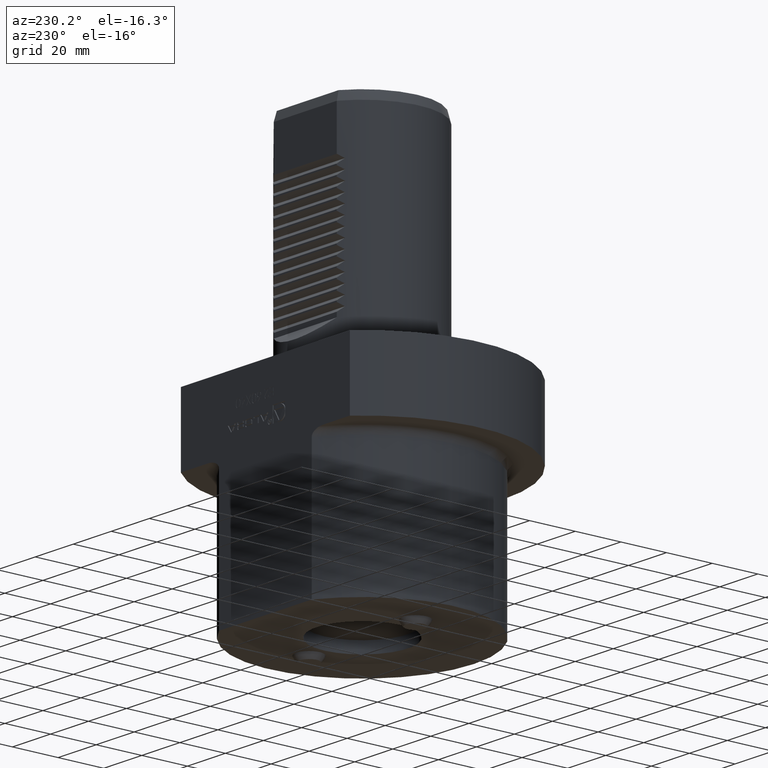
[diagram: clean part render]
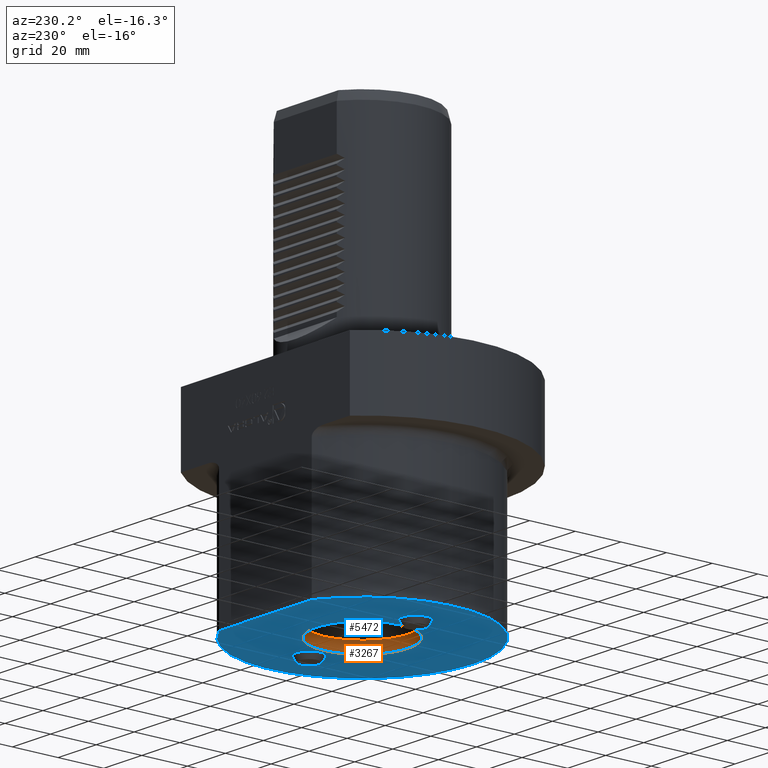
[diagram: same view with the hole feature highlighted: cylindrical wall and planar end face, labeled with their STEP entity ids]
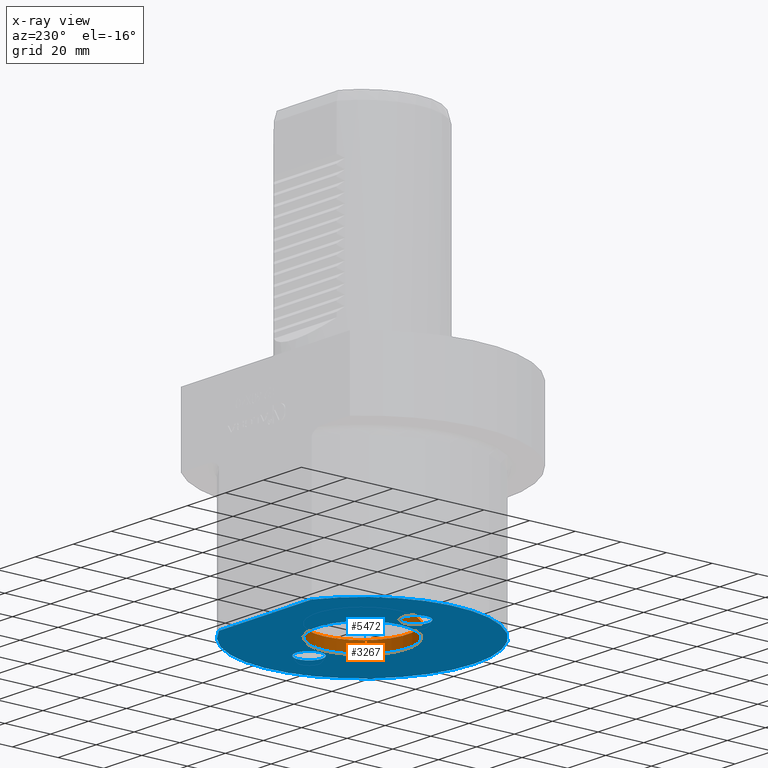
[diagram: x-ray of the same camera — body ghosted, the hole faces saturated]
A machine part, auxiliary view. The highlighted faces form one hole feature of diameter 40 mm: the cylindrical wall (entity #3267, orange) and its adjacent planar end face (entity #5472, blue) — they share a circular edge in the B-rep.
The next image is the same camera in x-ray (body ghosted, the hole faces saturated) — the bore reads through the body.
Wall:
#2585 = CARTESIAN_POINT ( 'NONE',  ( -3.996802888650567332E-14, -1.102182119232614913E-14, -90.00000000000000000 ) ) ;
#3230 = VERTEX_POINT ( 'NONE', #10713 ) ;
#3267 = ADVANCED_FACE ( 'NONE', ( #4487, #13685 ), #7686, .F. ) ;
#3443 = CARTESIAN_POINT ( 'NONE',  ( -3.774758283725535393E-14, -1.040949779275247497E-14, -84.99999999999998579 ) ) ;
#3961 = AXIS2_PLACEMENT_3D ( 'NONE', #3443, #12640, #8752 ) ;
#4397 = AXIS2_PLACEMENT_3D ( 'NONE', #2585, #11126, #10077 ) ;
#4487 = FACE_OUTER_BOUND ( 'NONE', #5791, .T. ) ;
#5791 = EDGE_LOOP ( 'NONE', ( #5984 ) ) ;
#5978 = CIRCLE ( 'NONE', #6666, 20.00000000000000000 ) ;
#5984 = ORIENTED_EDGE ( 'NONE', *, *, #8963, .F. ) ;
#6666 = AXIS2_PLACEMENT_3D ( 'NONE', #10600, #12714, #9566 ) ;
#6820 = EDGE_CURVE ( 'NONE', #3230, #3230, #13779, .T. ) ;
#7686 = CYLINDRICAL_SURFACE ( 'NONE', #3961, 20.00000000000000000 ) ;
#8752 = DIRECTION ( 'NONE',  ( -1.000000000000000000, 0.000000000000000000, 6.938893903907228378E-16 ) ) ;
#8963 = EDGE_CURVE ( 'NONE', #11701, #11701, #5978, .T. ) ;
#9566 = DIRECTION ( 'NONE',  ( -1.000000000000000000, 0.000000000000000000, 6.938893903907228378E-16 ) ) ;
#10077 = DIRECTION ( 'NONE',  ( -1.000000000000000000, 0.000000000000000000, 6.938893903907228378E-16 ) ) ;
#10600 = CARTESIAN_POINT ( 'NONE',  ( -3.774758283725535393E-14, -1.040949779275247497E-14, -84.99999999999998579 ) ) ;
#10647 = CARTESIAN_POINT ( 'NONE',  ( -20.00000000000003908, -1.040949779275247497E-14, -84.99999999999997158 ) ) ;
#10713 = CARTESIAN_POINT ( 'NONE',  ( -20.00000000000004263, -1.102182119232614913E-14, -89.99999999999998579 ) ) ;
#10787 = ORIENTED_EDGE ( 'NONE', *, *, #6820, .T. ) ;
#11126 = DIRECTION ( 'NONE',  ( -4.440892098500630106E-16, -1.224646799147350002E-16, -1.000000000000000000 ) ) ;
#11627 = EDGE_LOOP ( 'NONE', ( #10787 ) ) ;
#11701 = VERTEX_POINT ( 'NONE', #10647 ) ;
#12640 = DIRECTION ( 'NONE',  ( -4.440892098500630106E-16, -1.224646799147350002E-16, -1.000000000000000000 ) ) ;
#12714 = DIRECTION ( 'NONE',  ( -4.440892098500630106E-16, -1.224646799147350002E-16, -1.000000000000000000 ) ) ;
#13685 = FACE_OUTER_BOUND ( 'NONE', #11627, .T. ) ;
#13779 = CIRCLE ( 'NONE', #4397, 20.00000000000000000 ) ;
End face:
#64 = CARTESIAN_POINT ( 'NONE',  ( -33.67123702116954576, 1.494834246462925884E-15, -89.99999999999998579 ) ) ;
#1131 = VERTEX_POINT ( 'NONE', #4136 ) ;
#1260 = DIRECTION ( 'NONE',  ( -1.000000000000000000, 0.000000000000000000, 4.440892098500630106E-16 ) ) ;
#1290 = EDGE_CURVE ( 'NONE', #11625, #11625, #8484, .T. ) ;
#1743 = DIRECTION ( 'NONE',  ( -4.440892098500630106E-16, -1.224646799147350002E-16, -1.000000000000000000 ) ) ;
#2101 = FACE_BOUND ( 'NONE', #6139, .T. ) ;
#2317 = EDGE_LOOP ( 'NONE', ( #13801, #11642 ) ) ;
#2406 = EDGE_LOOP ( 'NONE', ( #9330 ) ) ;
#2585 = CARTESIAN_POINT ( 'NONE',  ( -3.996802888650567332E-14, -1.102182119232614913E-14, -90.00000000000000000 ) ) ;
#3230 = VERTEX_POINT ( 'NONE', #10713 ) ;
#3279 = FACE_OUTER_BOUND ( 'NONE', #2317, .T. ) ;
#3473 = VERTEX_POINT ( 'NONE', #11942 ) ;
#3713 = DIRECTION ( 'NONE',  ( 1.000000000000000000, -1.608122649676639805E-16, -4.440892098500630106E-16 ) ) ;
#3748 = AXIS2_PLACEMENT_3D ( 'NONE', #11354, #4211, #12553 ) ;
#3886 = ORIENTED_EDGE ( 'NONE', *, *, #1290, .T. ) ;
#4136 = CARTESIAN_POINT ( 'NONE',  ( 22.32876297883045069, -5.444059657444302494E-15, -90.00000000000001421 ) ) ;
#4211 = DIRECTION ( 'NONE',  ( 4.440892098500630106E-16, 1.224646799147350002E-16, 1.000000000000000000 ) ) ;
#4397 = AXIS2_PLACEMENT_3D ( 'NONE', #2585, #11126, #10077 ) ;
#4405 = CARTESIAN_POINT ( 'NONE',  ( 24.38749679651440161, 42.50000000000000000, -90.00000000000000000 ) ) ;
#4707 = VECTOR ( 'NONE', #3713, 1000.000000000000000 ) ;
#4762 = DIRECTION ( 'NONE',  ( -4.440892098500630106E-16, -1.224646799147350002E-16, -1.000000000000000000 ) ) ;
#5472 = ADVANCED_FACE ( 'Defeature completata1_53', ( #8595, #11676, #2101, #3279 ), #13853, .T. ) ;
#5585 = AXIS2_PLACEMENT_3D ( 'NONE', #8116, #4762, #12408 ) ;
#6139 = EDGE_LOOP ( 'NONE', ( #3886 ) ) ;
#6465 = CARTESIAN_POINT ( 'NONE',  ( -3.996802888650559759E-14, -1.102182119232619962E-14, -90.00000000000000000 ) ) ;
#6540 = DIRECTION ( 'NONE',  ( -4.440892098500630106E-16, -1.224646799147350002E-16, -1.000000000000000000 ) ) ;
#6820 = EDGE_CURVE ( 'NONE', #3230, #3230, #13779, .T. ) ;
#7503 = CIRCLE ( 'NONE', #9066, 49.00000000000000000 ) ;
#7855 = EDGE_CURVE ( 'NONE', #12321, #3473, #7503, .T. ) ;
#8116 = CARTESIAN_POINT ( 'NONE',  ( 27.99999999999998224, -5.444059657444302494E-15, -90.00000000000001421 ) ) ;
#8484 = CIRCLE ( 'NONE', #3748, 5.671237021169534209 ) ;
#8595 = FACE_BOUND ( 'NONE', #2406, .T. ) ;
#8893 = LINE ( 'NONE', #10020, #4707 ) ;
#9066 = AXIS2_PLACEMENT_3D ( 'NONE', #11320, #1743, #9933 ) ;
#9108 = EDGE_LOOP ( 'NONE', ( #11084 ) ) ;
#9330 = ORIENTED_EDGE ( 'NONE', *, *, #6820, .F. ) ;
#9933 = DIRECTION ( 'NONE',  ( 1.608122649676639805E-16, 1.000000000000000000, 0.000000000000000000 ) ) ;
#10020 = CARTESIAN_POINT ( 'NONE',  ( -22.22611077089289822, 42.50000000000000000, -90.00000000000000000 ) ) ;
#10077 = DIRECTION ( 'NONE',  ( -1.000000000000000000, 0.000000000000000000, 6.938893903907228378E-16 ) ) ;
#10092 = AXIS2_PLACEMENT_3D ( 'NONE', #6465, #6540, #1260 ) ;
#10208 = EDGE_CURVE ( 'NONE', #1131, #1131, #10968, .T. ) ;
#10713 = CARTESIAN_POINT ( 'NONE',  ( -20.00000000000004263, -1.102182119232614913E-14, -89.99999999999998579 ) ) ;
#10968 = CIRCLE ( 'NONE', #5585, 5.671237021169534209 ) ;
#11084 = ORIENTED_EDGE ( 'NONE', *, *, #10208, .F. ) ;
#11126 = DIRECTION ( 'NONE',  ( -4.440892098500630106E-16, -1.224646799147350002E-16, -1.000000000000000000 ) ) ;
#11187 = EDGE_CURVE ( 'NONE', #3473, #12321, #8893, .T. ) ;
#11320 = CARTESIAN_POINT ( 'NONE',  ( -3.996802888650559759E-14, -1.102182119232619962E-14, -90.00000000000000000 ) ) ;
#11354 = CARTESIAN_POINT ( 'NONE',  ( -28.00000000000001066, 1.494834246462925884E-15, -89.99999999999998579 ) ) ;
#11625 = VERTEX_POINT ( 'NONE', #64 ) ;
#11642 = ORIENTED_EDGE ( 'NONE', *, *, #7855, .T. ) ;
#11676 = FACE_BOUND ( 'NONE', #9108, .T. ) ;
#11942 = CARTESIAN_POINT ( 'NONE',  ( -24.38749679651440161, 42.50000000000000000, -90.00000000000000000 ) ) ;
#12321 = VERTEX_POINT ( 'NONE', #4405 ) ;
#12408 = DIRECTION ( 'NONE',  ( -1.000000000000000000, 0.000000000000000000, 0.000000000000000000 ) ) ;
#12553 = DIRECTION ( 'NONE',  ( -1.000000000000000000, 0.000000000000000000, 0.000000000000000000 ) ) ;
#13779 = CIRCLE ( 'NONE', #4397, 20.00000000000000000 ) ;
#13801 = ORIENTED_EDGE ( 'NONE', *, *, #11187, .T. ) ;
#13853 = PLANE ( 'NONE',  #10092 ) ;